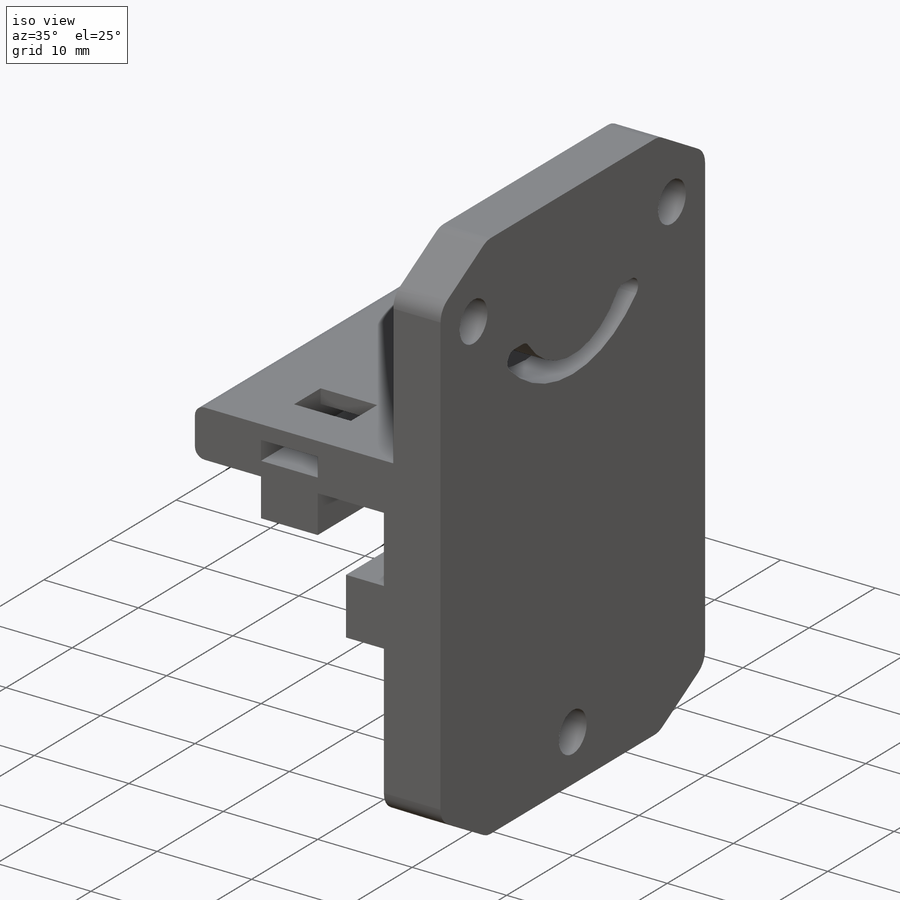
[diagram: iso view]
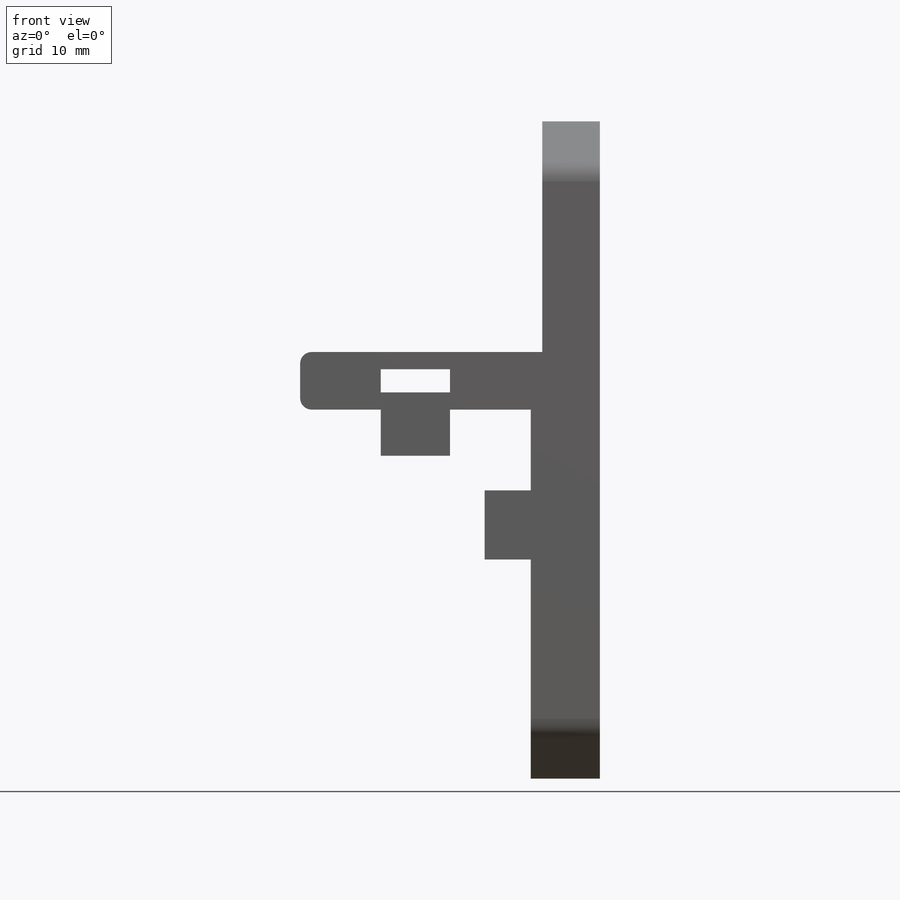
[diagram: front view]
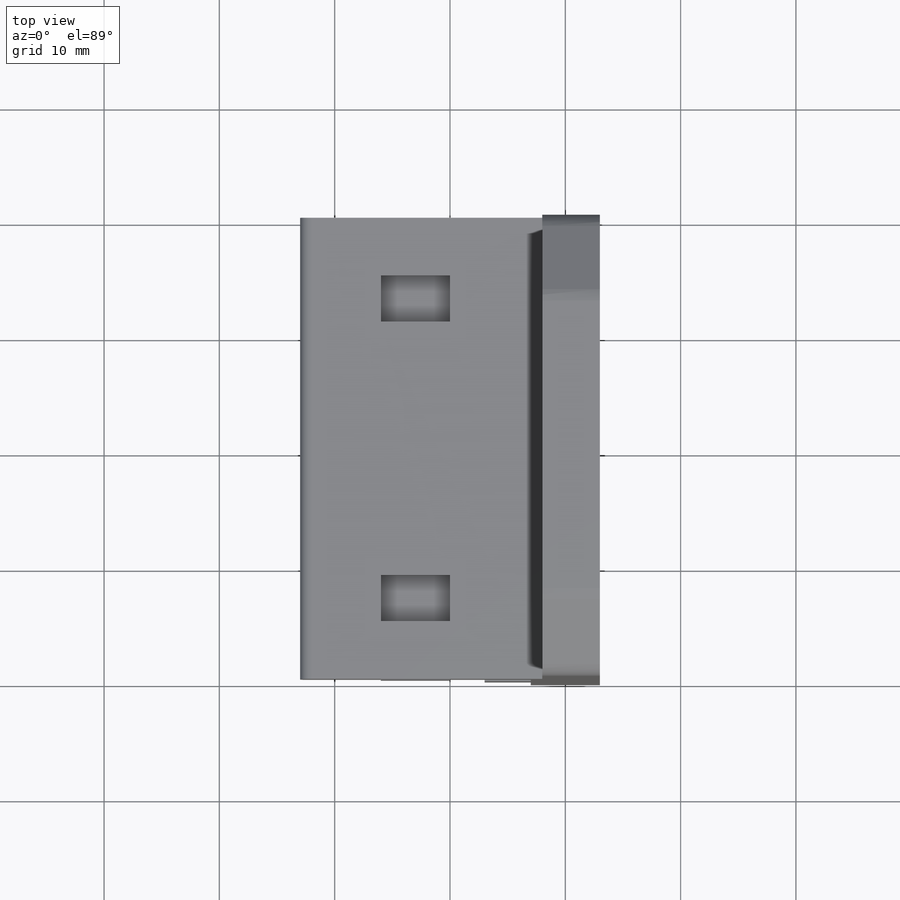
[diagram: top view]
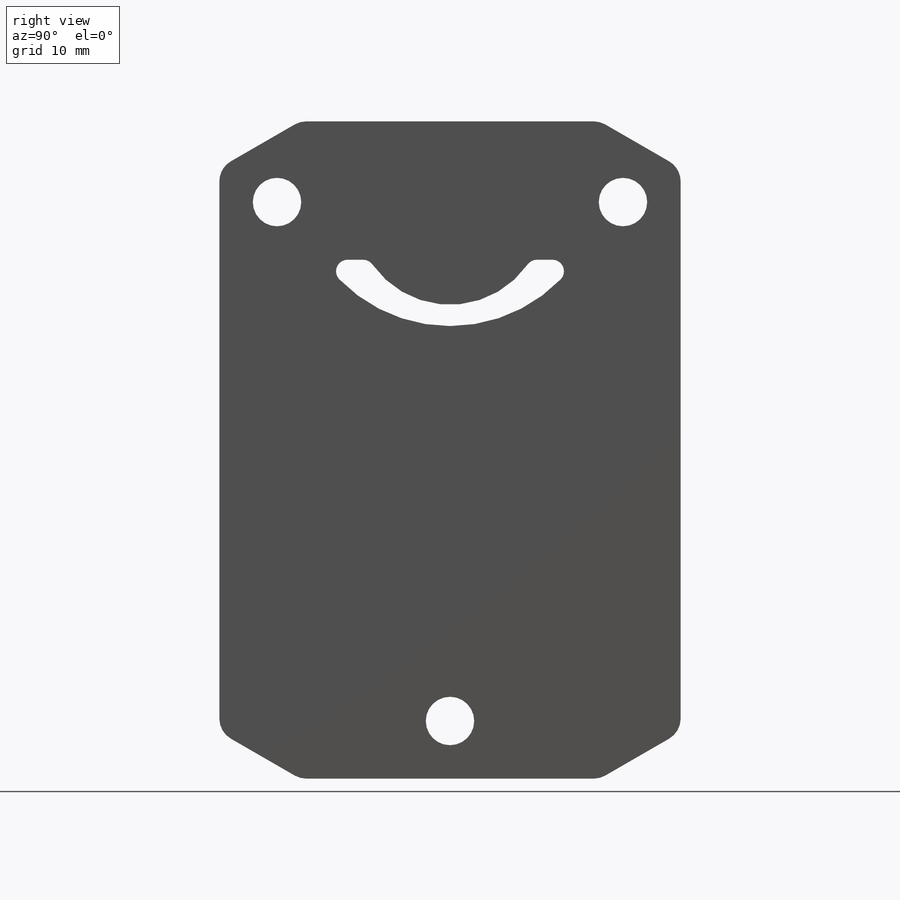
[diagram: right view]
SOLIDWORKS PART (.sldprt)
format: sldprt  version: not decoded by parser v0  size: 386,048 bytes
history: native  units: mm
features: sketch x11, cut_extrude x8, plane x3, extrude x3, fillet x3, material x1, chamfer x1 (+8 scaffold rows collapsed)
feature tree (38):
  scaffold x8  (default folders/planes/origin — collapsed)
  material  "Matériau <non spécifié>"
  plane  "Plan de face"
  plane  "Plan de dessus"
  plane  "Plan de droite"
  sketch  "Esquisse1"  dims[D1=26.0mm D2=50.0mm D3=13.0mm D4=25.0mm]
  extrude  "Boss.-Extru.1"  Depth=40mm
  sketch  "Esquisse2"  dims[D1=20.0mm D2=20.0mm D3=5.0mm]
  cut_extrude  "Enlèv. mat.-Extru.1"  [1 undecoded]
  sketch  "Esquisse3"  dims[D1=4.0mm D2=4.0mm D3=7.0mm D4=7.0mm D5=6.0mm D6=6.0mm D7=6.0mm D8=4.0mm D9=7.0mm]
  extrude  "Boss.-Extru.2"  [1 undecoded]
  sketch  "Esquisse7"  dims[D1=5.0mm D2=20.0mm]
  cut_extrude  "Enlèv. mat.-Extru.4"  [1 undecoded]
  sketch  "Esquisse8"  dims[D1=6.0mm D2=7.0mm D3=1.5mm D4=2.0mm]
  cut_extrude  "Enlèv. mat.-Extru.5"  [1 undecoded]
  sketch  "Esquisse9"  dims[D1=5.0mm D2=4.0mm D3=6.0mm D4=6.0mm D5=4.0mm D6=5.0mm D7=7.0mm D8=7.0mm]
  cut_extrude  "Enlèv. mat.-Extru.6"  [1 undecoded]
  sketch  "Esquisse10"  dims[D1=4.2mm D2=4.2mm D3=30.0mm D4=7.0mm D5=5.0mm D6=7.0mm D7=5.0mm]
  cut_extrude  "Enlèv. mat.-Extru.7"  [1 undecoded]
  sketch  "Esquisse12"  dims[D6=~8.229297mm D7=~13.393887mm D1=4.0mm D2=4.0mm D3=12.0mm D4=14.0mm D5=9.0mm]
  cut_extrude  "Enlèv. mat.-Extru.9"  [1 undecoded]
  sketch  "Esquisse13"
  cut_extrude  "Enlèv. mat.-Extru.10"  [1 undecoded]
  fillet  "Congé1"  Radius=1mm
  fillet  "Congé2"  Radius=1mm
  sketch  "Esquisse14"
  extrude  "Boss.-Extru.3"  Depth=12mm
  chamfer  "Chanfrein1"  Distance=7mm Angle=30deg
  fillet  "Congé3"  Radius=2mm
  sketch  "Esquisse16"  dims[D1=4.2mm D2=20.0mm D3=5.0mm]
  cut_extrude  "Enlèv. mat.-Extru.11"  [1 undecoded]
decode coverage: 15 of 26 modeling features carry decoded parameters
note: ~ marks probable driven/reference dimensions
note: 9 parameter values undecoded
summary: no parameter record found for 9 features
note: suppression state not decoded; provenance and decode notes live in map.json
